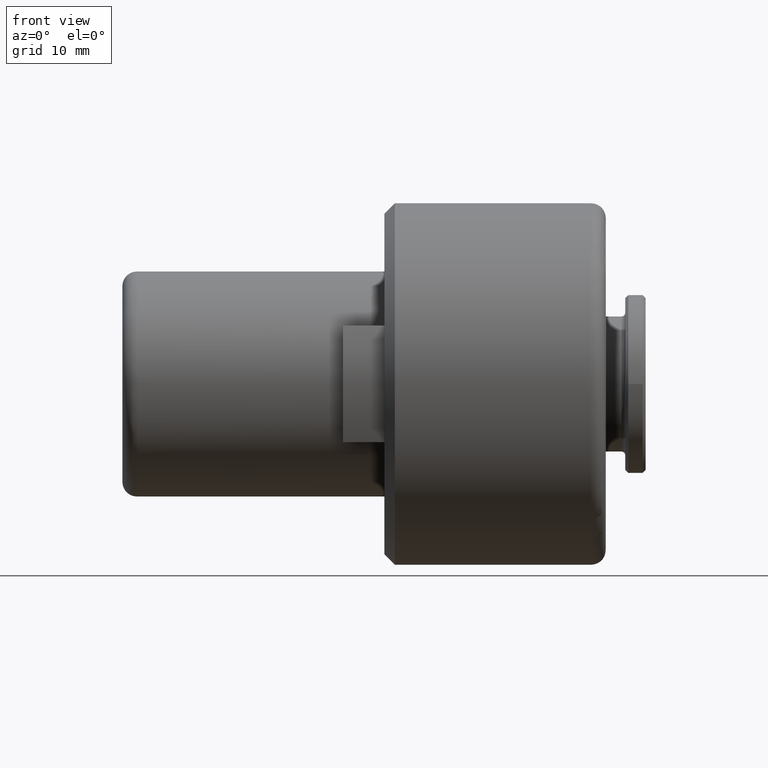
[diagram: clean part render]
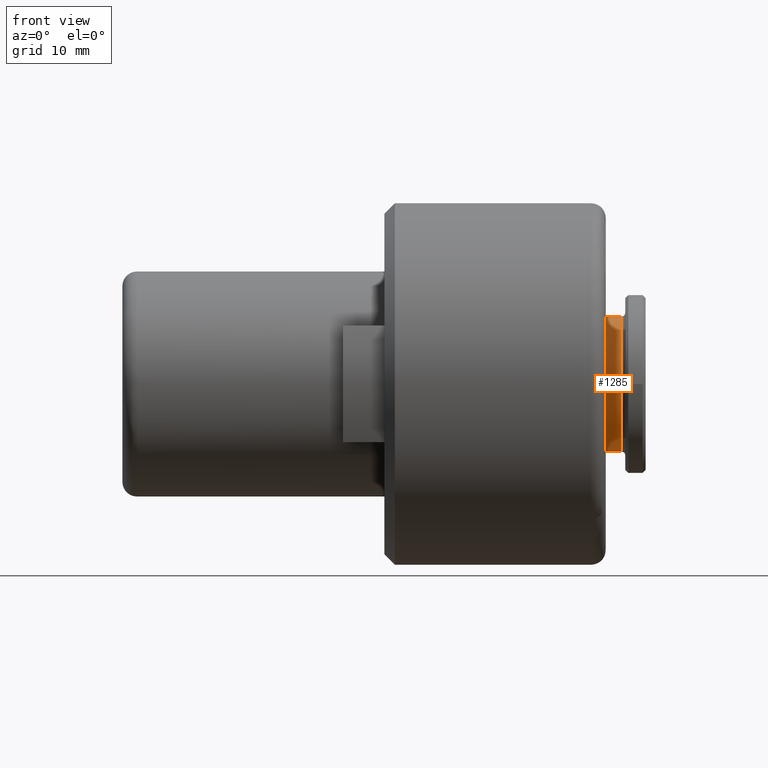
[diagram: same view with one face highlighted and labeled with its STEP entity id]
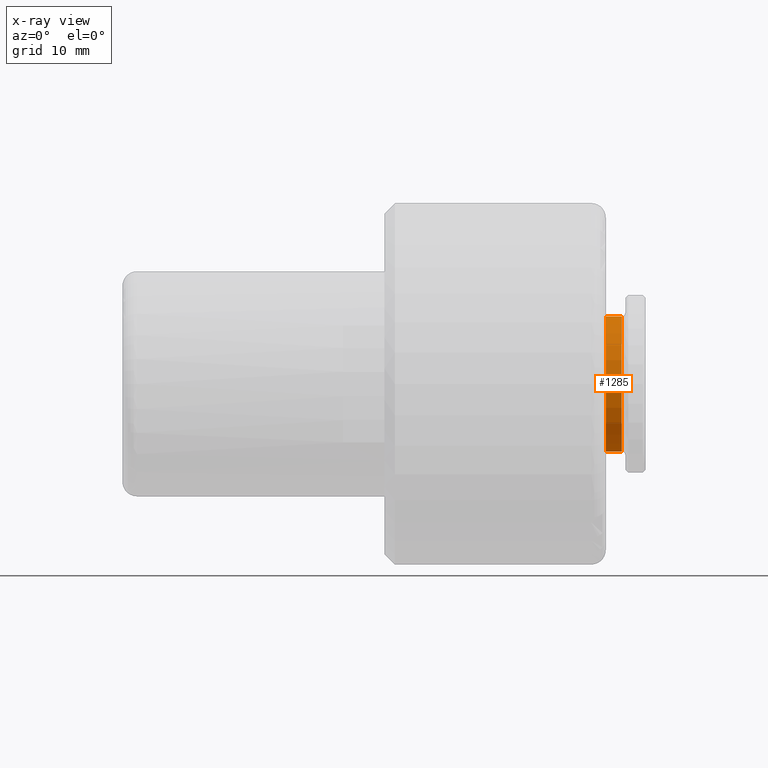
[diagram: x-ray of the same camera — body ghosted, the highlighted face saturated]
A machine part, front view. The second image highlights one B-rep face of the part: STEP entity #1285.
The next image is the same camera in x-ray: the body ghosted, the highlighted face saturated — about 0% of this face is hidden behind the body in this view.
In plain terms, the highlighted cylindrical surface (partial cylindrical patch) has radius 9.3 mm, axis along (-1, 0, 0).
Its self-contained STEP definition (entity closure, byte-faithful):
#11 = DIRECTION ( 'NONE',  ( -1.000000000000000000, 0.0000000000000000000, 0.0000000000000000000 ) ) ;
#37 = ORIENTED_EDGE ( 'NONE', *, *, #1077, .T. ) ;
#126 = CARTESIAN_POINT ( 'NONE',  ( 68.79999999999999700, 0.0000000000000000000, 0.0000000000000000000 ) ) ;
#146 = CARTESIAN_POINT ( 'NONE',  ( 66.59999999999999400, 0.0000000000000000000, 0.0000000000000000000 ) ) ;
#152 = CARTESIAN_POINT ( 'NONE',  ( 66.59999999999999400, 1.138921523207038600E-015, -9.300000000000000700 ) ) ;
#236 = ORIENTED_EDGE ( 'NONE', *, *, #1174, .F. ) ;
#252 = DIRECTION ( 'NONE',  ( 0.0000000000000000000, 0.0000000000000000000, 1.000000000000000000 ) ) ;
#263 = DIRECTION ( 'NONE',  ( 1.000000000000000000, -0.0000000000000000000, -0.0000000000000000000 ) ) ;
#267 = DIRECTION ( 'NONE',  ( 0.0000000000000000000, 0.0000000000000000000, 1.000000000000000000 ) ) ;
#277 = ORIENTED_EDGE ( 'NONE', *, *, #608, .F. ) ;
#295 = LINE ( 'NONE', #1216, #1139 ) ;
#298 = VERTEX_POINT ( 'NONE', #152 ) ;
#351 = CYLINDRICAL_SURFACE ( 'NONE', #909, 9.300000000000000700 ) ;
#370 = CARTESIAN_POINT ( 'NONE',  ( 68.79999999999999700, -8.350807443872172500E-010, 9.299999999933453100 ) ) ;
#378 = CARTESIAN_POINT ( 'NONE',  ( 66.59999999999999400, 0.0000000000000000000, 9.300000000000000700 ) ) ;
#438 = DIRECTION ( 'NONE',  ( -1.000000000000000000, 0.0000000000000000000, 0.0000000000000000000 ) ) ;
#487 = VECTOR ( 'NONE', #11, 1000.000000000000000 ) ;
#608 = EDGE_CURVE ( 'NONE', #298, #1319, #1436, .T. ) ;
#620 = VERTEX_POINT ( 'NONE', #1269 ) ;
#687 = CARTESIAN_POINT ( 'NONE',  ( 68.79999999999999700, 1.138921523207038600E-015, -9.300000000000000700 ) ) ;
#729 = ORIENTED_EDGE ( 'NONE', *, *, #1345, .F. ) ;
#909 = AXIS2_PLACEMENT_3D ( 'NONE', #126, #1033, #252 ) ;
#933 = CARTESIAN_POINT ( 'NONE',  ( 68.79999999999999700, 0.0000000000000000000, 0.0000000000000000000 ) ) ;
#935 = DIRECTION ( 'NONE',  ( -1.000000000000000000, -0.0000000000000000000, -0.0000000000000000000 ) ) ;
#1033 = DIRECTION ( 'NONE',  ( -1.000000000000000000, 0.0000000000000000000, 0.0000000000000000000 ) ) ;
#1043 = DIRECTION ( 'NONE',  ( 0.0000000000000000000, 0.0000000000000000000, 1.000000000000000000 ) ) ;
#1077 = EDGE_CURVE ( 'NONE', #1220, #1319, #295, .T. ) ;
#1096 = EDGE_LOOP ( 'NONE', ( #236, #729, #37, #277 ) ) ;
#1124 = AXIS2_PLACEMENT_3D ( 'NONE', #933, #263, #1043 ) ;
#1139 = VECTOR ( 'NONE', #438, 1000.000000000000000 ) ;
#1174 = EDGE_CURVE ( 'NONE', #620, #298, #1334, .T. ) ;
#1216 = CARTESIAN_POINT ( 'NONE',  ( 68.79999999999999700, 0.0000000000000000000, 9.300000000000000700 ) ) ;
#1218 = AXIS2_PLACEMENT_3D ( 'NONE', #146, #935, #267 ) ;
#1220 = VERTEX_POINT ( 'NONE', #370 ) ;
#1236 = FACE_OUTER_BOUND ( 'NONE', #1096, .T. ) ;
#1261 = CIRCLE ( 'NONE', #1124, 9.300000000000000700 ) ;
#1269 = CARTESIAN_POINT ( 'NONE',  ( 68.80000000013944800, -2.861192827788869800E-009, -9.299999999933453100 ) ) ;
#1285 = ADVANCED_FACE ( 'NONE', ( #1236 ), #351, .T. ) ;
#1319 = VERTEX_POINT ( 'NONE', #378 ) ;
#1334 = LINE ( 'NONE', #687, #487 ) ;
#1345 = EDGE_CURVE ( 'NONE', #1220, #620, #1261, .T. ) ;
#1436 = CIRCLE ( 'NONE', #1218, 9.300000000000000700 ) ;